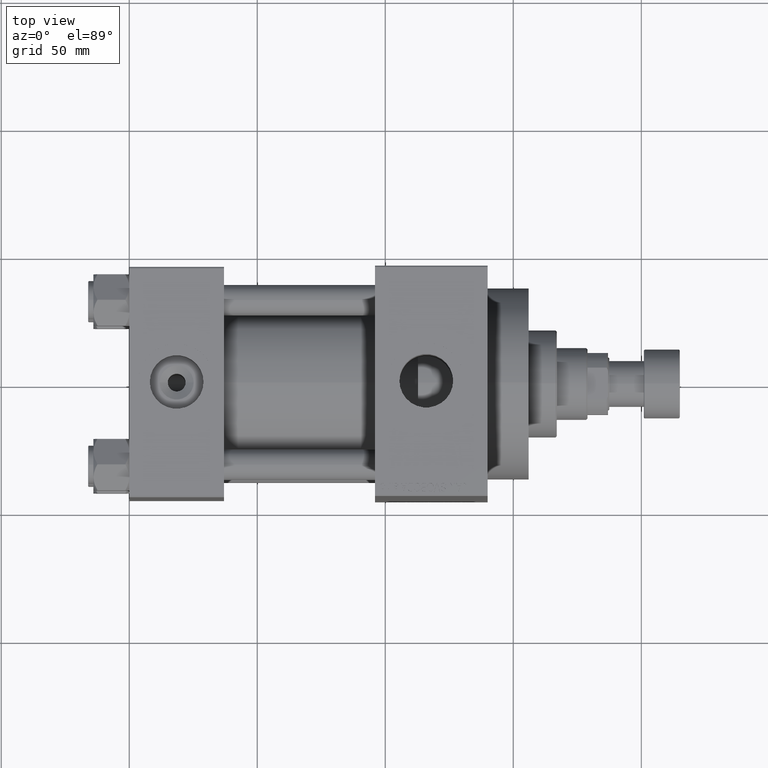
[diagram: clean part render]
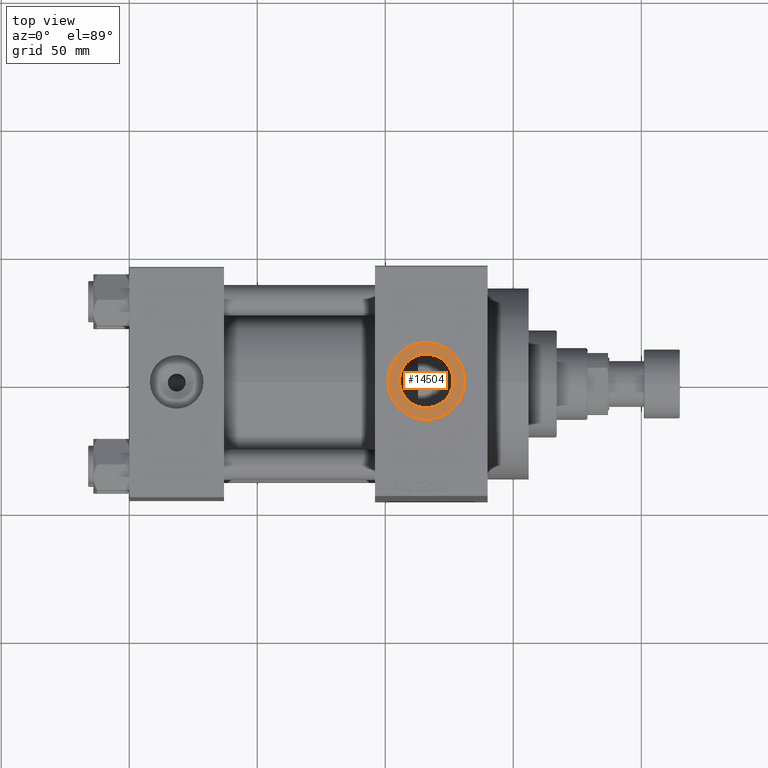
[diagram: same view with one face highlighted and labeled with its STEP entity id]
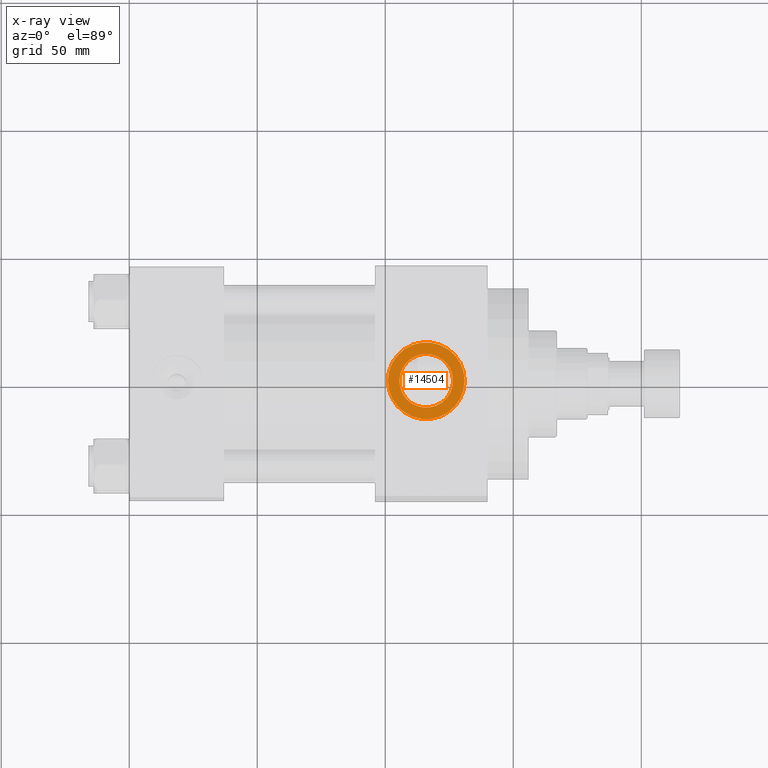
[diagram: x-ray of the same camera — body ghosted, the highlighted face saturated]
A machine part, top view. The second image highlights one B-rep face of the part: STEP entity #14504.
The next image is the same camera in x-ray: the body ghosted, the highlighted face saturated — about 0% of this face is hidden behind the body in this view.
In plain terms, the highlighted planar face has unit normal (0, 0, 1).
Its self-contained STEP definition (entity closure, byte-faithful):
#401 = VERTEX_POINT ( 'NONE', #13849 ) ;
#982 = DIRECTION ( 'NONE',  ( -0.000000000000000000, -0.000000000000000000, -1.000000000000000000 ) ) ;
#2110 = DIRECTION ( 'NONE',  ( 0.000000000000000000, 0.000000000000000000, 1.000000000000000000 ) ) ;
#3589 = EDGE_LOOP ( 'NONE', ( #20366, #29040 ) ) ;
#4047 = ORIENTED_EDGE ( 'NONE', *, *, #9678, .T. ) ;
#4718 = EDGE_CURVE ( 'NONE', #13731, #25032, #16565, .T. ) ;
#4798 = VERTEX_POINT ( 'NONE', #33761 ) ;
#4822 = CARTESIAN_POINT ( 'NONE',  ( 116.0000000000000000, 0.000000000000000000, 70.79999999999998295 ) ) ;
#8368 = DIRECTION ( 'NONE',  ( -0.000000000000000000, -0.000000000000000000, -1.000000000000000000 ) ) ;
#8526 = EDGE_CURVE ( 'NONE', #401, #4798, #36703, .T. ) ;
#9159 = DIRECTION ( 'NONE',  ( 1.000000000000000000, 0.000000000000000000, 0.000000000000000000 ) ) ;
#9678 = EDGE_CURVE ( 'NONE', #25032, #13731, #19790, .T. ) ;
#10084 = DIRECTION ( 'NONE',  ( 0.000000000000000000, 0.000000000000000000, 1.000000000000000000 ) ) ;
#10552 = DIRECTION ( 'NONE',  ( 1.000000000000000000, 0.000000000000000000, -0.000000000000000000 ) ) ;
#12297 = DIRECTION ( 'NONE',  ( 0.000000000000000000, 0.000000000000000000, 1.000000000000000000 ) ) ;
#12640 = AXIS2_PLACEMENT_3D ( 'NONE', #26693, #8368, #30070 ) ;
#13680 = FACE_BOUND ( 'NONE', #3589, .T. ) ;
#13731 = VERTEX_POINT ( 'NONE', #37296 ) ;
#13849 = CARTESIAN_POINT ( 'NONE',  ( 126.4800000000000040, 1.283429845506425883E-15, 70.79999999999998295 ) ) ;
#14154 = PLANE ( 'NONE',  #14524 ) ;
#14504 = ADVANCED_FACE ( 'NONE', ( #13680, #28392 ), #14154, .T. ) ;
#14524 = AXIS2_PLACEMENT_3D ( 'NONE', #36111, #10084, #10552 ) ;
#16565 = CIRCLE ( 'NONE', #24262, 15.00000000000000000 ) ;
#17246 = ORIENTED_EDGE ( 'NONE', *, *, #4718, .T. ) ;
#19512 = CARTESIAN_POINT ( 'NONE',  ( 116.0000000000000000, 0.000000000000000000, 70.79999999999998295 ) ) ;
#19790 = CIRCLE ( 'NONE', #29777, 15.00000000000000000 ) ;
#20366 = ORIENTED_EDGE ( 'NONE', *, *, #41077, .T. ) ;
#24262 = AXIS2_PLACEMENT_3D ( 'NONE', #19512, #12297, #33992 ) ;
#24274 = DIRECTION ( 'NONE',  ( 1.000000000000000000, 0.000000000000000000, 0.000000000000000000 ) ) ;
#25032 = VERTEX_POINT ( 'NONE', #47500 ) ;
#26693 = CARTESIAN_POINT ( 'NONE',  ( 116.0000000000000000, 0.000000000000000000, 70.79999999999998295 ) ) ;
#27261 = CIRCLE ( 'NONE', #12640, 10.48000000000000398 ) ;
#28392 = FACE_OUTER_BOUND ( 'NONE', #42002, .T. ) ;
#29040 = ORIENTED_EDGE ( 'NONE', *, *, #8526, .T. ) ;
#29777 = AXIS2_PLACEMENT_3D ( 'NONE', #45984, #2110, #24274 ) ;
#30070 = DIRECTION ( 'NONE',  ( 1.000000000000000000, 0.000000000000000000, 0.000000000000000000 ) ) ;
#32063 = AXIS2_PLACEMENT_3D ( 'NONE', #4822, #982, #9159 ) ;
#33761 = CARTESIAN_POINT ( 'NONE',  ( 105.5199999999999960, 0.000000000000000000, 70.79999999999998295 ) ) ;
#33992 = DIRECTION ( 'NONE',  ( 1.000000000000000000, 0.000000000000000000, 0.000000000000000000 ) ) ;
#36111 = CARTESIAN_POINT ( 'NONE',  ( 116.0000000000000000, 0.000000000000000000, 70.79999999999998295 ) ) ;
#36703 = CIRCLE ( 'NONE', #32063, 10.48000000000000398 ) ;
#37296 = CARTESIAN_POINT ( 'NONE',  ( 131.0000000000000000, 0.000000000000000000, 70.79999999999998295 ) ) ;
#41077 = EDGE_CURVE ( 'NONE', #4798, #401, #27261, .T. ) ;
#42002 = EDGE_LOOP ( 'NONE', ( #17246, #4047 ) ) ;
#45984 = CARTESIAN_POINT ( 'NONE',  ( 116.0000000000000000, 0.000000000000000000, 70.79999999999998295 ) ) ;
#47500 = CARTESIAN_POINT ( 'NONE',  ( 100.9999999999999858, 1.836970198721030772E-15, 70.79999999999998295 ) ) ;